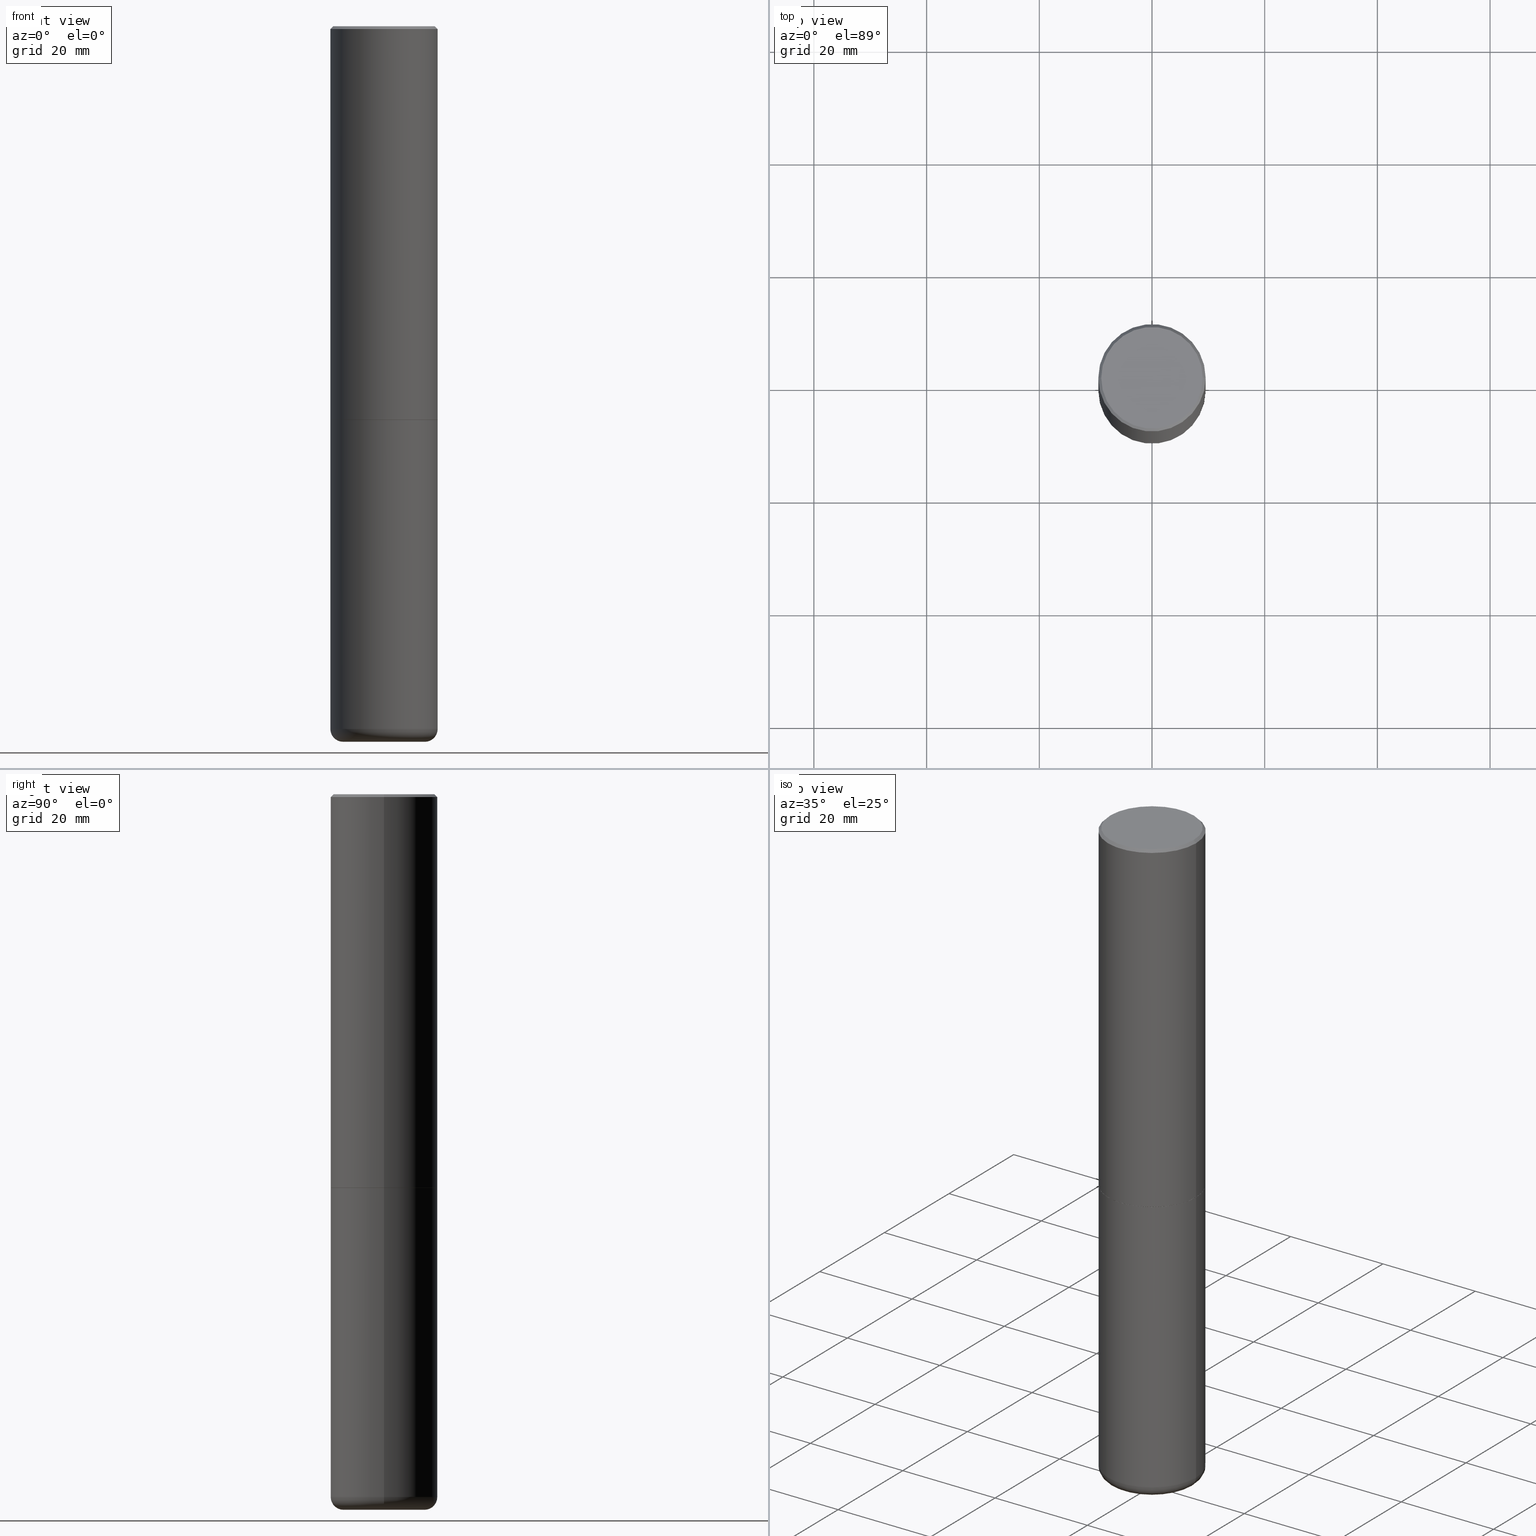
[diagram: canonical four-view strip — front | top / right | iso, engineering-drawing reading convention]
A machine part, canonical four-view strip (front | top / right | iso — engineering-drawing reading convention). The complete STEP part file that produces these views, byte-faithful:
ISO-10303-21;
HEADER;
FILE_DESCRIPTION (( 'STEP AP203' ),
    '1' );
FILE_NAME ('35727.STEP',
    '2022-11-02T20:53:57',
    ( '' ),
    ( '' ),
    'SwSTEP 2.0',
    'SolidWorks 2022',
    '' );
FILE_SCHEMA (( 'CONFIG_CONTROL_DESIGN' ));
ENDSEC;

DATA;
#1 = ORIENTED_EDGE ( 'NONE', *, *, #45, .T. ) ;
#2 = CARTESIAN_POINT ( 'NONE',  ( -1.043851414335219820E-46, 1.490343170380447200E-32, 4.268512490100411279E-18 ) ) ;
#3 = FACE_OUTER_BOUND ( 'NONE', #69, .T. ) ;
#4 = AXIS2_PLACEMENT_3D ( 'NONE', #120, #198, #76 ) ;
#5 = DESIGN_CONTEXT ( 'detailed design', #240, 'design' ) ;
#6 = CARTESIAN_POINT ( 'NONE',  ( 1.222734403092568523E-28, -1.745740669421572989E-14, -5.000000000000000000 ) ) ;
#7 = ORIENTED_EDGE ( 'NONE', *, *, #290, .F. ) ;
#8 = FACE_OUTER_BOUND ( 'NONE', #380, .T. ) ;
#9 = CARTESIAN_POINT ( 'NONE',  ( 1.200726021880531330E-28, -1.714318533876182370E-14, -4.910003426924224534 ) ) ;
#10 = DIRECTION ( 'NONE',  ( 1.000000000000000000, -6.982962677686265133E-15, 0.000000000000000000 ) ) ;
#11 = PRODUCT_DEFINITION ( 'UNKNOWN', '', #459, #5 ) ;
#12 = DIRECTION ( 'NONE',  ( -2.445468806185136597E-29, 3.491481338843145583E-15, 1.000000000000000000 ) ) ;
#13 = TOROIDAL_SURFACE ( 'NONE', #358, 0.2850000000000003086, 0.08999999999999984401 ) ;
#14 = VECTOR ( 'NONE', #211, 39.37007874015748143 ) ;
#15 = DIRECTION ( 'NONE',  ( -2.445468806185136597E-29, 3.491481338843145583E-15, 1.000000000000000000 ) ) ;
#16 = VERTEX_POINT ( 'NONE', #456 ) ;
#17 = LENGTH_MEASURE_WITH_UNIT ( LENGTH_MEASURE( 0.02539999999999999897 ), #362 );
#18 = EDGE_LOOP ( 'NONE', ( #141, #377, #190, #95 ) ) ;
#19 = CARTESIAN_POINT ( 'NONE',  ( 6.725039217009123399E-29, -9.601573681818648281E-15, -2.749999999999999556 ) ) ;
#20 = AXIS2_PLACEMENT_3D ( 'NONE', #460, #462, #10 ) ;
#21 = CARTESIAN_POINT ( 'NONE',  ( 0.000000000000000000, 0.000000000000000000, 0.000000000000000000 ) ) ;
#22 = CC_DESIGN_PERSON_AND_ORGANIZATION_ASSIGNMENT ( #25, #255, ( #329 ) ) ;
#23 = DIRECTION ( 'NONE',  ( 1.000000000000000000, -6.982962677686265922E-15, 4.876176775795935793E-29 ) ) ;
#24 = DIMENSIONAL_EXPONENTS ( 1.000000000000000000, 0.000000000000000000, 0.000000000000000000, 0.000000000000000000, 0.000000000000000000, 0.000000000000000000, 0.000000000000000000 ) ;
#25 = PERSON_AND_ORGANIZATION ( #188, #170 ) ;
#26 = AXIS2_PLACEMENT_3D ( 'NONE', #273, #82, #234 ) ;
#27 = VECTOR ( 'NONE', #268, 39.37007874015748854 ) ;
#28 = DIRECTION ( 'NONE',  ( 2.438088387897960049E-29, -3.491481338843145188E-15, -1.000000000000000000 ) ) ;
#29 = MECHANICAL_CONTEXT ( 'NONE', #199, 'mechanical' ) ;
#30 = VERTEX_POINT ( 'NONE', #491 ) ;
#31 = PERSON_AND_ORGANIZATION ( #188, #170 ) ;
#32 = ORIENTED_EDGE ( 'NONE', *, *, #125, .F. ) ;
#33 = DIRECTION ( 'NONE',  ( 0.000000000000000000, 0.000000000000000000, 1.000000000000000000 ) ) ;
#34 = ADVANCED_FACE ( 'NONE', ( #3 ), #320, .F. ) ;
#35 = CIRCLE ( 'NONE', #20, 0.3739999999999999991 ) ;
#36 = ORIENTED_EDGE ( 'NONE', *, *, #388, .T. ) ;
#37 = CARTESIAN_POINT ( 'NONE',  ( 6.725039217009123399E-29, -9.601573681818648281E-15, -2.749999999999999556 ) ) ;
#38 = FACE_OUTER_BOUND ( 'NONE', #135, .T. ) ;
#39 = ORIENTED_EDGE ( 'NONE', *, *, #56, .F. ) ;
#40 = LINE ( 'NONE', #239, #373 ) ;
#41 = ORIENTED_EDGE ( 'NONE', *, *, #162, .T. ) ;
#42 = LINE ( 'NONE', #195, #113 ) ;
#43 = AXIS2_PLACEMENT_3D ( 'NONE', #37, #311, #270 ) ;
#44 = AXIS2_PLACEMENT_3D ( 'NONE', #472, #286, #248 ) ;
#45 = EDGE_CURVE ( 'NONE', #429, #16, #387, .T. ) ;
#46 = DIRECTION ( 'NONE',  ( -1.000000000000000000, 6.982962677686266711E-15, 0.000000000000000000 ) ) ;
#47 = DIRECTION ( 'NONE',  ( -1.000000000000000000, 6.982962677686267499E-15, 0.000000000000000000 ) ) ;
#48 = CARTESIAN_POINT ( 'NONE',  ( -0.2850000000000003086, -1.511813854184553716E-14, -4.910003426924224534 ) ) ;
#49 = CIRCLE ( 'NONE', #26, 0.3750000000000000555 ) ;
#50 = CONICAL_SURFACE ( 'NONE', #487, 0.3749999999999991673, 0.7853981633974476129 ) ;
#51 = CARTESIAN_POINT ( 'NONE',  ( 1.220563486491695701E-28, -1.742641175868041910E-14, -4.991122697638252781 ) ) ;
#52 = CARTESIAN_POINT ( 'NONE',  ( -0.3750000000000000555, -1.070784425118986345E-14, -2.750000000000000000 ) ) ;
#53 = ORIENTED_EDGE ( 'NONE', *, *, #344, .F. ) ;
#54 = DIRECTION ( 'NONE',  ( -2.445468806185136597E-29, 3.491481338843145583E-15, 1.000000000000000000 ) ) ;
#55 = EDGE_LOOP ( 'NONE', ( #463, #109 ) ) ;
#56 = EDGE_CURVE ( 'NONE', #291, #118, #280, .T. ) ;
#57 = DIRECTION ( 'NONE',  ( -2.445468806185136597E-29, 3.491481338843145583E-15, 1.000000000000000000 ) ) ;
#58 = VECTOR ( 'NONE', #178, 39.37007874015748143 ) ;
#59 = AXIS2_PLACEMENT_3D ( 'NONE', #48, #152, #315 ) ;
#60 = VERTEX_POINT ( 'NONE', #376 ) ;
#61 = CARTESIAN_POINT ( 'NONE',  ( -0.3750000000000000555, -1.070784425118986345E-14, -4.910003426924224534 ) ) ;
#62 = PERSON_AND_ORGANIZATION_ROLE ( 'creator' ) ;
#63 = EDGE_CURVE ( 'NONE', #492, #414, #219, .T. ) ;
#64 = CIRCLE ( 'NONE', #458, 0.3750000000000000555 ) ;
#65 = APPROVAL_PERSON_ORGANIZATION ( #263, #293, #417 ) ;
#66 = EDGE_LOOP ( 'NONE', ( #77, #193, #309, #447 ) ) ;
#67 = DATE_TIME_ROLE ( 'creation_date' ) ;
#68 = PLANE ( 'NONE',  #475 ) ;
#69 = EDGE_LOOP ( 'NONE', ( #457, #272 ) ) ;
#70 = ORIENTED_EDGE ( 'NONE', *, *, #125, .T. ) ;
#71 = PERSON_AND_ORGANIZATION_ROLE ( 'design_supplier' ) ;
#72 = EDGE_CURVE ( 'NONE', #229, #262, #254, .T. ) ;
#73 = CIRCLE ( 'NONE', #413, 0.3739999999999999991 ) ;
#74 = CC_DESIGN_APPROVAL ( #146, ( #11 ) ) ;
#75 = ORIENTED_EDGE ( 'NONE', *, *, #388, .F. ) ;
#76 = DIRECTION ( 'NONE',  ( -1.000000000000000000, 6.982962677686265922E-15, -4.876176775795935793E-29 ) ) ;
#77 = ORIENTED_EDGE ( 'NONE', *, *, #56, .T. ) ;
#78 = ORIENTED_EDGE ( 'NONE', *, *, #203, .T. ) ;
#79 = DIRECTION ( 'NONE',  ( 1.000000000000000000, -6.982962677686265133E-15, 4.876176775795935793E-29 ) ) ;
#80 = EDGE_LOOP ( 'NONE', ( #347, #1, #264, #7 ) ) ;
#81 = EDGE_CURVE ( 'NONE', #492, #30, #246, .T. ) ;
#82 = DIRECTION ( 'NONE',  ( -2.445468806185136597E-29, 3.491481338843145583E-15, 1.000000000000000000 ) ) ;
#83 = ORIENTED_EDGE ( 'NONE', *, *, #256, .T. ) ;
#84 = CARTESIAN_POINT ( 'NONE',  ( 4.890937612370327459E-31, -6.982962677686369262E-17, -0.02000000000000022246 ) ) ;
#85 = ORIENTED_EDGE ( 'NONE', *, *, #197, .F. ) ;
#86 = CIRCLE ( 'NONE', #266, 0.2442171118051470746 ) ;
#87 = AXIS2_PLACEMENT_3D ( 'NONE', #21, #57, #443 ) ;
#88 = CARTESIAN_POINT ( 'NONE',  ( 0.3739999999999999991, -1.221320172327331228E-14, -2.749999999999999556 ) ) ;
#89 = DIRECTION ( 'NONE',  ( -2.445468806185136597E-29, 3.491481338843145583E-15, 1.000000000000000000 ) ) ;
#90 = DIRECTION ( 'NONE',  ( -1.000000000000000000, 6.982962677686265922E-15, 0.000000000000000000 ) ) ;
#91 = AXIS2_PLACEMENT_3D ( 'NONE', #112, #189, #158 ) ;
#92 = DIRECTION ( 'NONE',  ( -1.000000000000000000, 6.982962677686266711E-15, 0.000000000000000000 ) ) ;
#93 = CARTESIAN_POINT ( 'NONE',  ( 0.000000000000000000, 0.000000000000000000, 0.000000000000000000 ) ) ;
#94 = ADVANCED_FACE ( 'NONE', ( #261 ), #287, .T. ) ;
#95 = ORIENTED_EDGE ( 'NONE', *, *, #319, .F. ) ;
#96 = DIRECTION ( 'NONE',  ( 1.000000000000000000, -6.982962677686260400E-15, 0.000000000000000000 ) ) ;
#97 = DIRECTION ( 'NONE',  ( -2.445468806185136877E-29, 3.491481338843145188E-15, 1.000000000000000000 ) ) ;
#98 = AXIS2_PLACEMENT_3D ( 'NONE', #231, #142, #137 ) ;
#99 = CARTESIAN_POINT ( 'NONE',  ( -0.3750000000000000555, 2.664535259100376091E-15, -1.844600658845589598E-29 ) ) ;
#100 = DIRECTION ( 'NONE',  ( 1.000000000000000000, 0.000000000000000000, 0.000000000000000000 ) ) ;
#101 = ADVANCED_FACE ( 'NONE', ( #374 ), #68, .F. ) ;
#102 = DIRECTION ( 'NONE',  ( 1.000000000000000000, -6.982962677686265133E-15, 0.000000000000000000 ) ) ;
#103 = APPLICATION_PROTOCOL_DEFINITION ( 'international standard', 'config_control_design', 1994, #199 ) ;
#104 = COORDINATED_UNIVERSAL_TIME_OFFSET ( 5, 0, .BEHIND. ) ;
#105 = CIRCLE ( 'NONE', #213, 0.3750000000000000555 ) ;
#106 = CARTESIAN_POINT ( 'NONE',  ( 6.725039217009123399E-29, -9.601573681818648281E-15, -2.749999999999999556 ) ) ;
#107 = DATE_AND_TIME ( #452, #432 ) ;
#108 = EDGE_CURVE ( 'NONE', #16, #375, #124, .T. ) ;
#109 = ORIENTED_EDGE ( 'NONE', *, *, #319, .T. ) ;
#110 = PERSON_AND_ORGANIZATION_ROLE ( 'classification_officer' ) ;
#111 = EDGE_CURVE ( 'NONE', #30, #492, #105, .T. ) ;
#112 = CARTESIAN_POINT ( 'NONE',  ( 1.200726021880531330E-28, -1.714318533876182370E-14, -4.910003426924224534 ) ) ;
#113 = VECTOR ( 'NONE', #352, 39.37007874015748143 ) ;
#114 = CARTESIAN_POINT ( 'NONE',  ( 0.3749999999999991673, -2.642516375941182112E-15, -0.02000000000000022246 ) ) ;
#115 = AXIS2_PLACEMENT_3D ( 'NONE', #93, #402, #23 ) ;
#116 = ORIENTED_EDGE ( 'NONE', *, *, #197, .T. ) ;
#117 = LINE ( 'NONE', #318, #236 ) ;
#118 = VERTEX_POINT ( 'NONE', #148 ) ;
#119 = DIRECTION ( 'NONE',  ( 1.000000000000000000, -6.982962677686266711E-15, 4.876231632512002757E-29 ) ) ;
#120 = CARTESIAN_POINT ( 'NONE',  ( 2.478951750578617109E-15, 0.3549999999999989275, -1.237341619044262680E-15 ) ) ;
#121 = VERTEX_POINT ( 'NONE', #308 ) ;
#122 = DIRECTION ( 'NONE',  ( -2.445468806185136597E-29, 3.491481338843145583E-15, 1.000000000000000000 ) ) ;
#123 = LINE ( 'NONE', #470, #27 ) ;
#124 = CIRCLE ( 'NONE', #251, 0.3749999999999991673 ) ;
#125 = EDGE_CURVE ( 'NONE', #229, #121, #86, .T. ) ;
#126 = AXIS2_PLACEMENT_3D ( 'NONE', #331, #244, #96 ) ;
#127 = DIRECTION ( 'NONE',  ( 1.000000000000000000, -6.982962677686266711E-15, 0.000000000000000000 ) ) ;
#128 = CARTESIAN_POINT ( 'NONE',  ( -1.043851414335219820E-46, 1.490343170380447200E-32, 4.268512490100411279E-18 ) ) ;
#129 = CARTESIAN_POINT ( 'NONE',  ( -0.3749999999999991673, 2.548781377355480407E-15, -0.02000000000000022246 ) ) ;
#130 =( CONVERSION_BASED_UNIT ( 'INCH', #17 ) LENGTH_UNIT ( ) NAMED_UNIT ( #24 ) );
#131 = AXIS2_PLACEMENT_3D ( 'NONE', #216, #134, #209 ) ;
#132 = FACE_OUTER_BOUND ( 'NONE', #18, .T. ) ;
#133 = ADVANCED_FACE ( 'NONE', ( #421 ), #258, .T. ) ;
#134 = DIRECTION ( 'NONE',  ( -6.982962677686266711E-15, -1.000000000000000000, 3.491481338843145583E-15 ) ) ;
#135 = EDGE_LOOP ( 'NONE', ( #225, #316 ) ) ;
#136 = DIRECTION ( 'NONE',  ( 2.445468806185136597E-29, -3.491481338843145583E-15, -1.000000000000000000 ) ) ;
#137 = DIRECTION ( 'NONE',  ( 1.000000000000000000, -6.982962677686266711E-15, 0.000000000000000000 ) ) ;
#138 = AXIS2_PLACEMENT_3D ( 'NONE', #128, #317, #119 ) ;
#139 = APPROVAL_DATE_TIME ( #488, #293 ) ;
#140 = AXIS2_PLACEMENT_3D ( 'NONE', #394, #431, #357 ) ;
#141 = ORIENTED_EDGE ( 'NONE', *, *, #63, .F. ) ;
#142 = DIRECTION ( 'NONE',  ( -2.445468806185136597E-29, 3.491481338843145583E-15, 1.000000000000000000 ) ) ;
#143 = APPROVAL_DATE_TIME ( #482, #342 ) ;
#144 = EDGE_LOOP ( 'NONE', ( #85, #78, #243 ) ) ;
#145 = DIRECTION ( 'NONE',  ( -0.9999619230641714207, 6.952228252019235511E-15, -0.008726535498355246501 ) ) ;
#146 = APPROVAL ( #411, 'UNSPECIFIED' ) ;
#147 = PERSON_AND_ORGANIZATION_ROLE ( 'creator' ) ;
#148 = CARTESIAN_POINT ( 'NONE',  ( -0.3750000000000000555, -2.169420654527954251E-15, -2.749000000000000554 ) ) ;
#149 = ORIENTED_EDGE ( 'NONE', *, *, #450, .T. ) ;
#150 = DIRECTION ( 'NONE',  ( -2.438088387897960049E-29, 3.491481338843145188E-15, 1.000000000000000000 ) ) ;
#151 = ADVANCED_FACE ( 'NONE', ( #403 ), #13, .T. ) ;
#152 = DIRECTION ( 'NONE',  ( 7.105427357601001859E-15, 1.000000000000000000, -3.491481338843145583E-15 ) ) ;
#153 = CLOSED_SHELL ( 'NONE', ( #94, #302, #313, #365, #436, #133, #34, #242 ) ) ;
#154 = DIRECTION ( 'NONE',  ( 0.7071067811865469066, -7.319954787623252890E-15, -0.7071067811865479058 ) ) ;
#155 = CC_DESIGN_APPROVAL ( #342, ( #384 ) ) ;
#156 = CARTESIAN_POINT ( 'NONE',  ( 0.3750000000000000555, -1.221669320461216002E-14, -2.749000000000000554 ) ) ;
#157 = EDGE_LOOP ( 'NONE', ( #70, #484, #441, #169 ) ) ;
#158 = DIRECTION ( 'NONE',  ( 1.000000000000000000, -6.982962677686265133E-15, 4.883557194083112340E-29 ) ) ;
#159 = EDGE_CURVE ( 'NONE', #490, #429, #324, .T. ) ;
#160 = EDGE_LOOP ( 'NONE', ( #182, #116, #32 ) ) ;
#161 = CARTESIAN_POINT ( 'NONE',  ( 6.725039217009124520E-29, -9.601573681818649859E-15, -2.750000000000000000 ) ) ;
#162 = EDGE_CURVE ( 'NONE', #118, #291, #49, .T. ) ;
#163 = DIRECTION ( 'NONE',  ( -2.445468806185136597E-29, 3.491481338843145583E-15, 1.000000000000000000 ) ) ;
#164 = CC_DESIGN_APPROVAL ( #293, ( #459 ) ) ;
#165 = CARTESIAN_POINT ( 'NONE',  ( -0.3749999999999991673, 2.548781377355480407E-15, -0.02000000000000022246 ) ) ;
#166 = EDGE_CURVE ( 'NONE', #118, #375, #42, .T. ) ;
#167 = ORIENTED_EDGE ( 'NONE', *, *, #466, .F. ) ;
#168 = FACE_OUTER_BOUND ( 'NONE', #144, .T. ) ;
#169 = ORIENTED_EDGE ( 'NONE', *, *, #72, .F. ) ;
#170 = ORGANIZATION ( 'UNSPECIFIED', 'UNSPECIFIED', '' ) ;
#171 = CARTESIAN_POINT ( 'NONE',  ( 1.222649043296057309E-28, -1.745618798254845354E-14, -4.999650947105539700 ) ) ;
#172 = CARTESIAN_POINT ( 'NONE',  ( 2.618611004132417464E-15, 0.3749999999999903966, -2.750000000000000888 ) ) ;
#173 = CARTESIAN_POINT ( 'NONE',  ( 0.3750000000000000555, -2.618611004132350016E-15, 1.828566290923476203E-29 ) ) ;
#174 = DIRECTION ( 'NONE',  ( 1.000000000000000000, -6.982962677686266711E-15, 0.000000000000000000 ) ) ;
#175 = APPROVAL_ROLE ( '' ) ;
#176 = CONICAL_SURFACE ( 'NONE', #44, 0.2442171118051470746, 1.535889741755013249 ) ;
#177 = SECURITY_CLASSIFICATION_LEVEL ( 'unclassified' ) ;
#178 = DIRECTION ( 'NONE',  ( -2.445468806185136877E-29, 3.491481338843145188E-15, 1.000000000000000000 ) ) ;
#179 = ORIENTED_EDGE ( 'NONE', *, *, #218, .T. ) ;
#180 = COORDINATED_UNIVERSAL_TIME_OFFSET ( 5, 0, .BEHIND. ) ;
#181 = ADVANCED_FACE ( 'NONE', ( #8 ), #398, .T. ) ;
#182 = ORIENTED_EDGE ( 'NONE', *, *, #203, .F. ) ;
#183 = PERSON_AND_ORGANIZATION ( #188, #170 ) ;
#184 = CONICAL_SURFACE ( 'NONE', #349, 0.2842146118051471215, 1.562069680534943661 ) ;
#185 = EDGE_CURVE ( 'NONE', #121, #416, #40, .T. ) ;
#186 = ORIENTED_EDGE ( 'NONE', *, *, #162, .F. ) ;
#187 = ORIENTED_EDGE ( 'NONE', *, *, #486, .T. ) ;
#188 = PERSON ( 'UNSPECIFIED', 'UNSPECIFIED', 'UNSPECIFIED', ('UNSPECIFIED'), ('UNSPECIFIED'), ('UNSPECIFIED') ) ;
#189 = DIRECTION ( 'NONE',  ( -2.445468806185136597E-29, 3.491481338843145583E-15, 1.000000000000000000 ) ) ;
#190 = ORIENTED_EDGE ( 'NONE', *, *, #466, .T. ) ;
#191 = ORIENTED_EDGE ( 'NONE', *, *, #218, .F. ) ;
#192 = CARTESIAN_POINT ( 'NONE',  ( 1.222734403092568523E-28, -1.745740669421572989E-14, -5.000000000000000000 ) ) ;
#193 = ORIENTED_EDGE ( 'NONE', *, *, #166, .T. ) ;
#194 = VECTOR ( 'NONE', #97, 39.37007874015748143 ) ;
#195 = CARTESIAN_POINT ( 'NONE',  ( -0.3749999999999995559, 2.664535259100372542E-15, -1.844600658845587356E-29 ) ) ;
#196 = DIRECTION ( 'NONE',  ( -1.000000000000000000, 6.982962677686265922E-15, -4.876176775795935793E-29 ) ) ;
#197 = EDGE_CURVE ( 'NONE', #379, #121, #117, .T. ) ;
#198 = DIRECTION ( 'NONE',  ( 2.438088387897960049E-29, -3.491481338843145188E-15, -1.000000000000000000 ) ) ;
#199 = APPLICATION_CONTEXT ( 'configuration controlled 3d designs of mechanical parts and assemblies' ) ;
#200 = PLANE ( 'NONE',  #4 ) ;
#201 = CC_DESIGN_PERSON_AND_ORGANIZATION_ASSIGNMENT ( #454, #71, ( #459 ) ) ;
#202 = FACE_OUTER_BOUND ( 'NONE', #66, .T. ) ;
#203 = EDGE_CURVE ( 'NONE', #379, #229, #123, .T. ) ;
#204 = ORIENTED_EDGE ( 'NONE', *, *, #81, .F. ) ;
#205 = AXIS2_PLACEMENT_3D ( 'NONE', #6, #274, #424 ) ;
#206 = CARTESIAN_POINT ( 'NONE',  ( 0.2842146118051471215, -1.944206672090416141E-14, -5.000000000000000000 ) ) ;
#207 = CARTESIAN_POINT ( 'NONE',  ( 1.200726021880531330E-28, -1.714318533876182370E-14, -4.910003426924224534 ) ) ;
#208 = PRODUCT_RELATED_PRODUCT_CATEGORY ( 'detail', '', ( #329 ) ) ;
#209 = DIRECTION ( 'NONE',  ( 1.000000000000000000, -6.982962677686279332E-15, 0.000000000000000000 ) ) ;
#210 = ORIENTED_EDGE ( 'NONE', *, *, #284, .F. ) ;
#211 = DIRECTION ( 'NONE',  ( -2.445468806185136877E-29, 3.491481338843145188E-15, 1.000000000000000000 ) ) ;
#212 = VERTEX_POINT ( 'NONE', #346 ) ;
#213 = AXIS2_PLACEMENT_3D ( 'NONE', #9, #122, #489 ) ;
#214 = AXIS2_PLACEMENT_3D ( 'NONE', #442, #54, #285 ) ;
#215 = CC_DESIGN_SECURITY_CLASSIFICATION ( #384, ( #459 ) ) ;
#216 = CARTESIAN_POINT ( 'NONE',  ( 0.2850000000000003086, -1.913332970190241034E-14, -4.910003426924224534 ) ) ;
#217 = CARTESIAN_POINT ( 'NONE',  ( 0.3739999999999999991, -1.221320172327331228E-14, -2.749999999999999556 ) ) ;
#218 = EDGE_CURVE ( 'NONE', #416, #262, #383, .T. ) ;
#219 = LINE ( 'NONE', #99, #58 ) ;
#220 = APPROVAL_STATUS ( 'not_yet_approved' ) ;
#221 =( NAMED_UNIT ( * ) PLANE_ANGLE_UNIT ( ) SI_UNIT ( $, .RADIAN. ) );
#222 = VECTOR ( 'NONE', #386, 39.37007874015748143 ) ;
#223 = ADVANCED_FACE ( 'NONE', ( #279 ), #469, .F. ) ;
#224 = CALENDAR_DATE ( 2022, 2, 11 ) ;
#225 = ORIENTED_EDGE ( 'NONE', *, *, #159, .T. ) ;
#226 = DIRECTION ( 'NONE',  ( 1.000000000000000000, -6.982962677686266711E-15, 0.000000000000000000 ) ) ;
#227 = EDGE_CURVE ( 'NONE', #343, #291, #326, .T. ) ;
#228 = CIRCLE ( 'NONE', #126, 0.2842146118051471215 ) ;
#229 = VERTEX_POINT ( 'NONE', #434 ) ;
#230 = CARTESIAN_POINT ( 'NONE',  ( 0.000000000000000000, 0.000000000000000000, 0.000000000000000000 ) ) ;
#231 = CARTESIAN_POINT ( 'NONE',  ( 6.722593748202942280E-29, -9.598082200479810007E-15, -2.749000000000000554 ) ) ;
#232 = FACE_OUTER_BOUND ( 'NONE', #80, .T. ) ;
#233 = CARTESIAN_POINT ( 'NONE',  ( 6.725039217009124520E-29, -9.601573681818649859E-15, -2.750000000000000000 ) ) ;
#234 = DIRECTION ( 'NONE',  ( 1.000000000000000000, -6.982962677686266711E-15, 0.000000000000000000 ) ) ;
#235 = DIRECTION ( 'NONE',  ( 2.445468806185136597E-29, -3.491481338843145583E-15, -1.000000000000000000 ) ) ;
#236 = VECTOR ( 'NONE', #465, 39.37007874015748854 ) ;
#237 = LOCAL_TIME ( 16, 53, 57.00000000000000000, #378 ) ;
#238 = ADVANCED_FACE ( 'NONE', ( #395 ), #184, .F. ) ;
#239 = CARTESIAN_POINT ( 'NONE',  ( 0.2842146118051471215, -1.940726046944235309E-14, -5.000000000000000000 ) ) ;
#240 = APPLICATION_CONTEXT ( 'configuration controlled 3d designs of mechanical parts and assemblies' ) ;
#241 = FACE_OUTER_BOUND ( 'NONE', #391, .T. ) ;
#242 = ADVANCED_FACE ( 'NONE', ( #38 ), #200, .F. ) ;
#243 = ORIENTED_EDGE ( 'NONE', *, *, #450, .F. ) ;
#244 = DIRECTION ( 'NONE',  ( -2.445468806185136597E-29, 3.491481338843145583E-15, 1.000000000000000000 ) ) ;
#245 = ADVANCED_FACE ( 'NONE', ( #241 ), #350, .T. ) ;
#246 = CIRCLE ( 'NONE', #381, 0.3750000000000000555 ) ;
#247 = FACE_OUTER_BOUND ( 'NONE', #160, .T. ) ;
#248 = DIRECTION ( 'NONE',  ( -1.000000000000000000, 6.982962677686265922E-15, 0.000000000000000000 ) ) ;
#249 = LINE ( 'NONE', #404, #288 ) ;
#250 = ORIENTED_EDGE ( 'NONE', *, *, #227, .F. ) ;
#251 = AXIS2_PLACEMENT_3D ( 'NONE', #339, #353, #226 ) ;
#252 = CARTESIAN_POINT ( 'NONE',  ( -0.3549999999999989275, 2.513866563967048758E-15, 4.268512490082953109E-18 ) ) ;
#253 = ORIENTED_EDGE ( 'NONE', *, *, #63, .T. ) ;
#254 = LINE ( 'NONE', #448, #420 ) ;
#255 = PERSON_AND_ORGANIZATION_ROLE ( 'design_owner' ) ;
#256 = EDGE_CURVE ( 'NONE', #60, #343, #35, .T. ) ;
#257 = DIRECTION ( 'NONE',  ( -2.445468806185136597E-29, 3.491481338843145583E-15, 1.000000000000000000 ) ) ;
#258 = CONICAL_SURFACE ( 'NONE', #43, 0.3739999999999999991, 0.7853981633980972044 ) ;
#259 = APPROVAL_DATE_TIME ( #419, #146 ) ;
#260 = AXIS2_PLACEMENT_3D ( 'NONE', #426, #15, #79 ) ;
#261 = FACE_OUTER_BOUND ( 'NONE', #385, .T. ) ;
#262 = VERTEX_POINT ( 'NONE', #428 ) ;
#263 = PERSON_AND_ORGANIZATION ( #188, #170 ) ;
#264 = ORIENTED_EDGE ( 'NONE', *, *, #108, .T. ) ;
#265 = CALENDAR_DATE ( 2022, 2, 11 ) ;
#266 = AXIS2_PLACEMENT_3D ( 'NONE', #321, #464, #278 ) ;
#267 = CIRCLE ( 'NONE', #297, 0.3549999999999989275 ) ;
#268 = DIRECTION ( 'NONE',  ( -0.9993908270190957621, 6.856857904024568303E-15, -0.03489949670249774261 ) ) ;
#269 = EDGE_LOOP ( 'NONE', ( #327, #41, #467, #53 ) ) ;
#270 = DIRECTION ( 'NONE',  ( 1.000000000000000000, -6.982962677686265133E-15, 0.000000000000000000 ) ) ;
#271 = DIRECTION ( 'NONE',  ( 2.445468806185136597E-29, -3.491481338843145583E-15, -1.000000000000000000 ) ) ;
#272 = ORIENTED_EDGE ( 'NONE', *, *, #256, .F. ) ;
#273 = CARTESIAN_POINT ( 'NONE',  ( 6.722593748202942280E-29, -9.598082200479810007E-15, -2.749000000000000554 ) ) ;
#274 = DIRECTION ( 'NONE',  ( 2.445468806185136597E-29, -3.491481338843145583E-15, -1.000000000000000000 ) ) ;
#275 = PRODUCT_DEFINITION_SHAPE ( 'NONE', 'NONE',  #11 ) ;
#276 = ORIENTED_EDGE ( 'NONE', *, *, #455, .F. ) ;
#277 = EDGE_CURVE ( 'NONE', #429, #490, #267, .T. ) ;
#278 = DIRECTION ( 'NONE',  ( 1.000000000000000000, -6.982962677686265922E-15, 0.000000000000000000 ) ) ;
#279 = FACE_OUTER_BOUND ( 'NONE', #425, .T. ) ;
#280 = CIRCLE ( 'NONE', #98, 0.3750000000000000555 ) ;
#281 = CIRCLE ( 'NONE', #59, 0.08999999999999985789 ) ;
#282 = ORIENTED_EDGE ( 'NONE', *, *, #298, .T. ) ;
#283 = LINE ( 'NONE', #165, #422 ) ;
#284 = EDGE_CURVE ( 'NONE', #212, #414, #325, .T. ) ;
#285 = DIRECTION ( 'NONE',  ( 1.000000000000000000, -6.982962677686266711E-15, 0.000000000000000000 ) ) ;
#286 = DIRECTION ( 'NONE',  ( 2.445468806185136597E-29, -3.491481338843145583E-15, -1.000000000000000000 ) ) ;
#287 = CONICAL_SURFACE ( 'NONE', #348, 0.3739999999999999991, 0.7853981633980972044 ) ;
#288 = VECTOR ( 'NONE', #406, 39.37007874015748143 ) ;
#289 = DIRECTION ( 'NONE',  ( 2.445468806185136597E-29, -3.491481338843145583E-15, -1.000000000000000000 ) ) ;
#290 = EDGE_CURVE ( 'NONE', #490, #375, #283, .T. ) ;
#291 = VERTEX_POINT ( 'NONE', #156 ) ;
#292 = DIRECTION ( 'NONE',  ( -2.445468806185136597E-29, 3.491481338843145583E-15, 1.000000000000000000 ) ) ;
#293 = APPROVAL ( #220, 'UNSPECIFIED' ) ;
#294 = CARTESIAN_POINT ( 'NONE',  ( 0.3749999999999995559, -2.618611004132346467E-15, 1.828566290923473680E-29 ) ) ;
#295 = ORIENTED_EDGE ( 'NONE', *, *, #227, .T. ) ;
#296 = AXIS2_PLACEMENT_3D ( 'NONE', #233, #150, #310 ) ;
#297 = AXIS2_PLACEMENT_3D ( 'NONE', #2, #12, #323 ) ;
#298 = EDGE_CURVE ( 'NONE', #262, #492, #281, .T. ) ;
#299 = DATE_AND_TIME ( #265, #401 ) ;
#300 = CARTESIAN_POINT ( 'NONE',  ( 1.200726021880531330E-28, -1.714318533876182370E-14, -4.910003426924224534 ) ) ;
#301 = SHAPE_DEFINITION_REPRESENTATION ( #275, #399 ) ;
#302 = ADVANCED_FACE ( 'NONE', ( #202 ), #390, .T. ) ;
#303 =( NAMED_UNIT ( * ) SI_UNIT ( $, .STERADIAN. ) SOLID_ANGLE_UNIT ( ) );
#304 = DIRECTION ( 'NONE',  ( 1.000000000000000000, -6.982962677686266711E-15, 0.000000000000000000 ) ) ;
#305 = APPLICATION_PROTOCOL_DEFINITION ( 'international standard', 'config_control_design', 1994, #240 ) ;
#306 = PERSON_AND_ORGANIZATION ( #188, #170 ) ;
#307 = CC_DESIGN_PERSON_AND_ORGANIZATION_ASSIGNMENT ( #183, #147, ( #459 ) ) ;
#308 = CARTESIAN_POINT ( 'NONE',  ( 0.2442171118051470746, -1.913163898910920839E-14, -4.999650947105539700 ) ) ;
#309 = ORIENTED_EDGE ( 'NONE', *, *, #108, .F. ) ;
#310 = DIRECTION ( 'NONE',  ( 1.000000000000000000, -6.982962677686265922E-15, 4.876176775795935793E-29 ) ) ;
#311 = DIRECTION ( 'NONE',  ( -2.445468806185136597E-29, 3.491481338843145583E-15, 1.000000000000000000 ) ) ;
#312 = ORIENTED_EDGE ( 'NONE', *, *, #111, .T. ) ;
#313 = ADVANCED_FACE ( 'NONE', ( #232 ), #50, .T. ) ;
#314 = CIRCLE ( 'NONE', #131, 0.08999999999999985789 ) ;
#315 = DIRECTION ( 'NONE',  ( -1.000000000000000000, 7.105427357601001859E-15, 0.000000000000000000 ) ) ;
#316 = ORIENTED_EDGE ( 'NONE', *, *, #277, .T. ) ;
#317 = DIRECTION ( 'NONE',  ( -2.445468806185136597E-29, 3.491481338843145583E-15, 1.000000000000000000 ) ) ;
#318 = CARTESIAN_POINT ( 'NONE',  ( 0.2442171118051470746, -1.913163898910920839E-14, -4.999650947105539700 ) ) ;
#319 = EDGE_CURVE ( 'NONE', #414, #212, #64, .T. ) ;
#320 = PLANE ( 'NONE',  #296 ) ;
#321 = CARTESIAN_POINT ( 'NONE',  ( 1.222649043296057309E-28, -1.745618798254845354E-14, -4.999650947105539700 ) ) ;
#322 = DIRECTION ( 'NONE',  ( 0.9999619230641714207, -6.890705306874777996E-15, -0.008726535498355246501 ) ) ;
#323 = DIRECTION ( 'NONE',  ( 1.000000000000000000, -6.982962677686266711E-15, 4.876231632512002757E-29 ) ) ;
#324 = CIRCLE ( 'NONE', #138, 0.3549999999999989275 ) ;
#325 = CIRCLE ( 'NONE', #430, 0.3750000000000000555 ) ;
#326 = LINE ( 'NONE', #88, #222 ) ;
#327 = ORIENTED_EDGE ( 'NONE', *, *, #166, .F. ) ;
#328 = CYLINDRICAL_SURFACE ( 'NONE', #87, 0.3749999999999995559 ) ;
#329 = PRODUCT ( '35727', '35727', '', ( #29 ) ) ;
#330 = ORIENTED_EDGE ( 'NONE', *, *, #72, .T. ) ;
#331 = CARTESIAN_POINT ( 'NONE',  ( 1.222734403092568523E-28, -1.745740669421572989E-14, -5.000000000000000000 ) ) ;
#332 = CARTESIAN_POINT ( 'NONE',  ( 4.890937612370327459E-31, -6.982962677686369262E-17, -0.02000000000000022246 ) ) ;
#333 = CC_DESIGN_DATE_AND_TIME_ASSIGNMENT ( #107, #67, ( #11 ) ) ;
#334 = LINE ( 'NONE', #294, #194 ) ;
#335 = COORDINATED_UNIVERSAL_TIME_OFFSET ( 5, 0, .BEHIND. ) ;
#336 = ADVANCED_FACE ( 'NONE', ( #168 ), #367, .F. ) ;
#337 = CALENDAR_DATE ( 2022, 2, 11 ) ;
#338 = COORDINATED_UNIVERSAL_TIME_OFFSET ( 5, 0, .BEHIND. ) ;
#339 = CARTESIAN_POINT ( 'NONE',  ( 4.890937612370327459E-31, -6.982962677686369262E-17, -0.02000000000000022246 ) ) ;
#340 = ORIENTED_EDGE ( 'NONE', *, *, #298, .F. ) ;
#341 = AXIS2_PLACEMENT_3D ( 'NONE', #477, #289, #90 ) ;
#342 = APPROVAL ( #446, 'UNSPECIFIED' ) ;
#343 = VERTEX_POINT ( 'NONE', #217 ) ;
#344 = EDGE_CURVE ( 'NONE', #375, #16, #481, .T. ) ;
#345 = MANIFOLD_SOLID_BREP ( 'Body-Move/Copy2[2]', #153 ) ;
#346 = CARTESIAN_POINT ( 'NONE',  ( 0.3750000000000000555, -1.222018468595100145E-14, -2.750000000000000000 ) ) ;
#347 = ORIENTED_EDGE ( 'NONE', *, *, #277, .F. ) ;
#348 = AXIS2_PLACEMENT_3D ( 'NONE', #106, #257, #102 ) ;
#349 = AXIS2_PLACEMENT_3D ( 'NONE', #192, #271, #47 ) ;
#350 = CYLINDRICAL_SURFACE ( 'NONE', #423, 0.3750000000000000555 ) ;
#351 = EDGE_LOOP ( 'NONE', ( #75, #83, #295, #186 ) ) ;
#352 = DIRECTION ( 'NONE',  ( -2.445468806185136877E-29, 3.491481338843145188E-15, 1.000000000000000000 ) ) ;
#353 = DIRECTION ( 'NONE',  ( -2.445468806185136597E-29, 3.491481338843145583E-15, 1.000000000000000000 ) ) ;
#354 = DIRECTION ( 'NONE',  ( 1.000000000000000000, -6.982962677686265922E-15, 4.876176775795935793E-29 ) ) ;
#355 = DIRECTION ( 'NONE',  ( -2.445468806185136597E-29, 3.491481338843145583E-15, 1.000000000000000000 ) ) ;
#356 = EDGE_CURVE ( 'NONE', #262, #416, #228, .T. ) ;
#357 = DIRECTION ( 'NONE',  ( 1.000000000000000000, -6.982962677686260400E-15, 0.000000000000000000 ) ) ;
#358 = AXIS2_PLACEMENT_3D ( 'NONE', #207, #163, #363 ) ;
#359 = MANIFOLD_SOLID_BREP ( 'Body-Move/Copy2[1]', #392 ) ;
#360 = AXIS2_PLACEMENT_3D ( 'NONE', #171, #478, #408 ) ;
#361 = APPROVAL_PERSON_ORGANIZATION ( #449, #342, #175 ) ;
#362 =( LENGTH_UNIT ( ) NAMED_UNIT ( * ) SI_UNIT ( $, .METRE. ) );
#363 = DIRECTION ( 'NONE',  ( 1.000000000000000000, -6.982962677686265133E-15, 4.883557194083112340E-29 ) ) ;
#364 = ADVANCED_FACE ( 'NONE', ( #132 ), #440, .T. ) ;
#365 = ADVANCED_FACE ( 'NONE', ( #368 ), #407, .T. ) ;
#366 = LINE ( 'NONE', #173, #14 ) ;
#367 = CONICAL_SURFACE ( 'NONE', #341, 0.2442171118051470746, 1.535889741755013249 ) ;
#368 = FACE_OUTER_BOUND ( 'NONE', #369, .T. ) ;
#369 = EDGE_LOOP ( 'NONE', ( #476, #445, #389, #483 ) ) ;
#370 = DIRECTION ( 'NONE',  ( 1.000000000000000000, -6.982962677686265133E-15, 0.000000000000000000 ) ) ;
#371 = ADVANCED_FACE ( 'NONE', ( #247 ), #176, .F. ) ;
#372 = CARTESIAN_POINT ( 'NONE',  ( 0.000000000000000000, 0.000000000000000000, 0.000000000000000000 ) ) ;
#373 = VECTOR ( 'NONE', #322, 39.37007874015748854 ) ;
#374 = FACE_OUTER_BOUND ( 'NONE', #55, .T. ) ;
#375 = VERTEX_POINT ( 'NONE', #129 ) ;
#376 = CARTESIAN_POINT ( 'NONE',  ( -0.3739999999999999991, -6.938845395727654346E-15, -2.749999999999999556 ) ) ;
#377 = ORIENTED_EDGE ( 'NONE', *, *, #81, .T. ) ;
#378 = COORDINATED_UNIVERSAL_TIME_OFFSET ( 5, 0, .BEHIND. ) ;
#379 = VERTEX_POINT ( 'NONE', #51 ) ;
#380 = EDGE_LOOP ( 'NONE', ( #179, #282, #412, #276 ) ) ;
#381 = AXIS2_PLACEMENT_3D ( 'NONE', #300, #409, #304 ) ;
#382 = DATE_TIME_ROLE ( 'classification_date' ) ;
#383 = CIRCLE ( 'NONE', #140, 0.2842146118051471215 ) ;
#384 = SECURITY_CLASSIFICATION ( '', '', #177 ) ;
#385 = EDGE_LOOP ( 'NONE', ( #187, #36, #39, #250 ) ) ;
#386 = DIRECTION ( 'NONE',  ( 0.7071067811870063169, -2.468850131087062801E-15, 0.7071067811860887176 ) ) ;
#387 = LINE ( 'NONE', #114, #468 ) ;
#388 = EDGE_CURVE ( 'NONE', #60, #118, #249, .T. ) ;
#389 = ORIENTED_EDGE ( 'NONE', *, *, #290, .T. ) ;
#390 = CYLINDRICAL_SURFACE ( 'NONE', #260, 0.3749999999999995559 ) ;
#391 = EDGE_LOOP ( 'NONE', ( #312, #253, #210, #167 ) ) ;
#392 = CLOSED_SHELL ( 'NONE', ( #238, #181, #245, #371, #336, #101, #364, #151, #223 ) ) ;
#393 = AXIS2_PLACEMENT_3D ( 'NONE', #372, #33, #100 ) ;
#394 = CARTESIAN_POINT ( 'NONE',  ( 1.222734403092568523E-28, -1.745740669421572989E-14, -5.000000000000000000 ) ) ;
#395 = FACE_OUTER_BOUND ( 'NONE', #157, .T. ) ;
#396 = DIRECTION ( 'NONE',  ( -0.7071067811865469066, 2.468850131082251144E-15, -0.7071067811865479058 ) ) ;
#397 = CARTESIAN_POINT ( 'NONE',  ( 0.3549999999999989275, -2.538996582575033948E-15, 4.268512490117958041E-18 ) ) ;
#398 = TOROIDAL_SURFACE ( 'NONE', #91, 0.2850000000000003086, 0.08999999999999984401 ) ;
#399 = ADVANCED_BREP_SHAPE_REPRESENTATION ( '35727', ( #359, #345, #393 ), #438 ) ;
#400 = AXIS2_PLACEMENT_3D ( 'NONE', #332, #136, #92 ) ;
#401 = LOCAL_TIME ( 16, 53, 57.00000000000000000, #180 ) ;
#402 = DIRECTION ( 'NONE',  ( -2.445468806185136597E-29, 3.491481338843145583E-15, 1.000000000000000000 ) ) ;
#403 = FACE_OUTER_BOUND ( 'NONE', #453, .T. ) ;
#404 = CARTESIAN_POINT ( 'NONE',  ( -0.3739999999999999991, -6.944143850075873593E-15, -2.749999999999999556 ) ) ;
#405 = ORIENTED_EDGE ( 'NONE', *, *, #455, .T. ) ;
#406 = DIRECTION ( 'NONE',  ( -0.7071067811870063169, 7.493145998872012346E-15, 0.7071067811860887176 ) ) ;
#407 = CONICAL_SURFACE ( 'NONE', #400, 0.3749999999999991673, 0.7853981633974476129 ) ;
#408 = DIRECTION ( 'NONE',  ( 1.000000000000000000, -6.982962677686265922E-15, 0.000000000000000000 ) ) ;
#409 = DIRECTION ( 'NONE',  ( -2.445468806185136597E-29, 3.491481338843145583E-15, 1.000000000000000000 ) ) ;
#410 = APPROVAL_ROLE ( '' ) ;
#411 = APPROVAL_STATUS ( 'not_yet_approved' ) ;
#412 = ORIENTED_EDGE ( 'NONE', *, *, #111, .F. ) ;
#413 = AXIS2_PLACEMENT_3D ( 'NONE', #19, #292, #370 ) ;
#414 = VERTEX_POINT ( 'NONE', #52 ) ;
#415 = CC_DESIGN_PERSON_AND_ORGANIZATION_ASSIGNMENT ( #31, #62, ( #11 ) ) ;
#416 = VERTEX_POINT ( 'NONE', #206 ) ;
#417 = APPROVAL_ROLE ( '' ) ;
#418 = UNCERTAINTY_MEASURE_WITH_UNIT (LENGTH_MEASURE( 1.000000000000000082E-05 ), #130, 'distance_accuracy_value', 'NONE');
#419 = DATE_AND_TIME ( #480, #237 ) ;
#420 = VECTOR ( 'NONE', #145, 39.37007874015748854 ) ;
#421 = FACE_OUTER_BOUND ( 'NONE', #351, .T. ) ;
#422 = VECTOR ( 'NONE', #396, 39.37007874015748854 ) ;
#423 = AXIS2_PLACEMENT_3D ( 'NONE', #230, #355, #354 ) ;
#424 = DIRECTION ( 'NONE',  ( -1.000000000000000000, 6.982962677686267499E-15, 0.000000000000000000 ) ) ;
#425 = EDGE_LOOP ( 'NONE', ( #427, #149, #330, #191 ) ) ;
#426 = CARTESIAN_POINT ( 'NONE',  ( 0.000000000000000000, 0.000000000000000000, 0.000000000000000000 ) ) ;
#427 = ORIENTED_EDGE ( 'NONE', *, *, #185, .F. ) ;
#428 = CARTESIAN_POINT ( 'NONE',  ( -0.2842146118051471215, -1.495829524786346745E-14, -5.000000000000000000 ) ) ;
#429 = VERTEX_POINT ( 'NONE', #397 ) ;
#430 = AXIS2_PLACEMENT_3D ( 'NONE', #161, #89, #127 ) ;
#431 = DIRECTION ( 'NONE',  ( -2.445468806185136597E-29, 3.491481338843145583E-15, 1.000000000000000000 ) ) ;
#432 = LOCAL_TIME ( 16, 53, 57.00000000000000000, #335 ) ;
#433 = CC_DESIGN_DATE_AND_TIME_ASSIGNMENT ( #299, #382, ( #384 ) ) ;
#434 = CARTESIAN_POINT ( 'NONE',  ( -0.2442171118051470746, -1.575082900556077654E-14, -4.999650947105539700 ) ) ;
#435 = DIRECTION ( 'NONE',  ( -2.445468806185136597E-29, 3.491481338843145583E-15, 1.000000000000000000 ) ) ;
#436 = ADVANCED_FACE ( 'NONE', ( #437 ), #328, .T. ) ;
#437 = FACE_OUTER_BOUND ( 'NONE', #269, .T. ) ;
#438 =( GEOMETRIC_REPRESENTATION_CONTEXT ( 3 ) GLOBAL_UNCERTAINTY_ASSIGNED_CONTEXT ( ( #418 ) ) GLOBAL_UNIT_ASSIGNED_CONTEXT ( ( #130, #221, #303 ) ) REPRESENTATION_CONTEXT ( 'NONE', 'WORKASPACE' ) );
#439 = LOCAL_TIME ( 16, 53, 57.00000000000000000, #338 ) ;
#440 = CYLINDRICAL_SURFACE ( 'NONE', #115, 0.3750000000000000555 ) ;
#441 = ORIENTED_EDGE ( 'NONE', *, *, #356, .F. ) ;
#442 = CARTESIAN_POINT ( 'NONE',  ( 4.890937612370327459E-31, -6.982962677686369262E-17, -0.02000000000000022246 ) ) ;
#443 = DIRECTION ( 'NONE',  ( 1.000000000000000000, -6.982962677686265133E-15, 4.876176775795935793E-29 ) ) ;
#444 = CIRCLE ( 'NONE', #360, 0.2442171118051470746 ) ;
#445 = ORIENTED_EDGE ( 'NONE', *, *, #159, .F. ) ;
#446 = APPROVAL_STATUS ( 'not_yet_approved' ) ;
#447 = ORIENTED_EDGE ( 'NONE', *, *, #473, .F. ) ;
#448 = CARTESIAN_POINT ( 'NONE',  ( -0.2842146118051471215, -1.547274666752729521E-14, -5.000000000000000000 ) ) ;
#449 = PERSON_AND_ORGANIZATION ( #188, #170 ) ;
#450 = EDGE_CURVE ( 'NONE', #121, #229, #444, .T. ) ;
#451 = APPROVAL_PERSON_ORGANIZATION ( #306, #146, #410 ) ;
#452 = CALENDAR_DATE ( 2022, 2, 11 ) ;
#453 = EDGE_LOOP ( 'NONE', ( #340, #461, #405, #204 ) ) ;
#454 = PERSON_AND_ORGANIZATION ( #188, #170 ) ;
#455 = EDGE_CURVE ( 'NONE', #416, #30, #314, .T. ) ;
#456 = CARTESIAN_POINT ( 'NONE',  ( 0.3749999999999991673, -2.642516375941182112E-15, -0.02000000000000022246 ) ) ;
#457 = ORIENTED_EDGE ( 'NONE', *, *, #486, .F. ) ;
#458 = AXIS2_PLACEMENT_3D ( 'NONE', #474, #435, #174 ) ;
#459 = PRODUCT_DEFINITION_FORMATION_WITH_SPECIFIED_SOURCE ( 'ANY', '', #329, .NOT_KNOWN. ) ;
#460 = CARTESIAN_POINT ( 'NONE',  ( 6.725039217009123399E-29, -9.601573681818648281E-15, -2.749999999999999556 ) ) ;
#461 = ORIENTED_EDGE ( 'NONE', *, *, #356, .T. ) ;
#462 = DIRECTION ( 'NONE',  ( -2.445468806185136597E-29, 3.491481338843145583E-15, 1.000000000000000000 ) ) ;
#463 = ORIENTED_EDGE ( 'NONE', *, *, #284, .T. ) ;
#464 = DIRECTION ( 'NONE',  ( -2.445468806185136597E-29, 3.491481338843145583E-15, 1.000000000000000000 ) ) ;
#465 = DIRECTION ( 'NONE',  ( 0.9993908270190957621, -6.978169709227530444E-15, -0.03489949670249774261 ) ) ;
#466 = EDGE_CURVE ( 'NONE', #30, #212, #366, .T. ) ;
#467 = ORIENTED_EDGE ( 'NONE', *, *, #473, .T. ) ;
#468 = VECTOR ( 'NONE', #154, 39.37007874015748854 ) ;
#469 = CONICAL_SURFACE ( 'NONE', #205, 0.2842146118051471215, 1.562069680534943661 ) ;
#470 = CARTESIAN_POINT ( 'NONE',  ( -0.2442171118051470746, -1.575082900556077654E-14, -4.999650947105539700 ) ) ;
#471 = LOCAL_TIME ( 16, 53, 57.00000000000000000, #104 ) ;
#472 = CARTESIAN_POINT ( 'NONE',  ( 1.222649043296057309E-28, -1.745618798254845354E-14, -4.999650947105539700 ) ) ;
#473 = EDGE_CURVE ( 'NONE', #291, #16, #334, .T. ) ;
#474 = CARTESIAN_POINT ( 'NONE',  ( 6.725039217009124520E-29, -9.601573681818649859E-15, -2.750000000000000000 ) ) ;
#475 = AXIS2_PLACEMENT_3D ( 'NONE', #172, #28, #196 ) ;
#476 = ORIENTED_EDGE ( 'NONE', *, *, #45, .F. ) ;
#477 = CARTESIAN_POINT ( 'NONE',  ( 1.222649043296057309E-28, -1.745618798254845354E-14, -4.999650947105539700 ) ) ;
#478 = DIRECTION ( 'NONE',  ( -2.445468806185136597E-29, 3.491481338843145583E-15, 1.000000000000000000 ) ) ;
#479 = CC_DESIGN_PERSON_AND_ORGANIZATION_ASSIGNMENT ( #485, #110, ( #384 ) ) ;
#480 = CALENDAR_DATE ( 2022, 2, 11 ) ;
#481 = CIRCLE ( 'NONE', #214, 0.3749999999999991673 ) ;
#482 = DATE_AND_TIME ( #337, #471 ) ;
#483 = ORIENTED_EDGE ( 'NONE', *, *, #344, .T. ) ;
#484 = ORIENTED_EDGE ( 'NONE', *, *, #185, .T. ) ;
#485 = PERSON_AND_ORGANIZATION ( #188, #170 ) ;
#486 = EDGE_CURVE ( 'NONE', #343, #60, #73, .T. ) ;
#487 = AXIS2_PLACEMENT_3D ( 'NONE', #84, #235, #46 ) ;
#488 = DATE_AND_TIME ( #224, #439 ) ;
#489 = DIRECTION ( 'NONE',  ( 1.000000000000000000, -6.982962677686266711E-15, 0.000000000000000000 ) ) ;
#490 = VERTEX_POINT ( 'NONE', #252 ) ;
#491 = CARTESIAN_POINT ( 'NONE',  ( 0.3750000000000000555, -1.976179634289417687E-14, -4.910003426924224534 ) ) ;
#492 = VERTEX_POINT ( 'NONE', #61 ) ;
ENDSEC;
END-ISO-10303-21;
